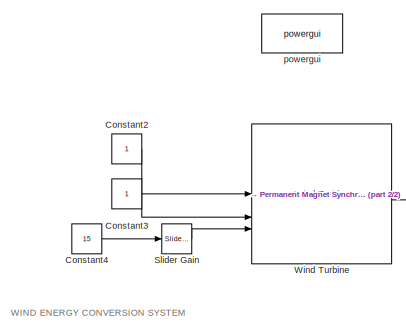
[diagram: root canvas - part 1/2, top left region]
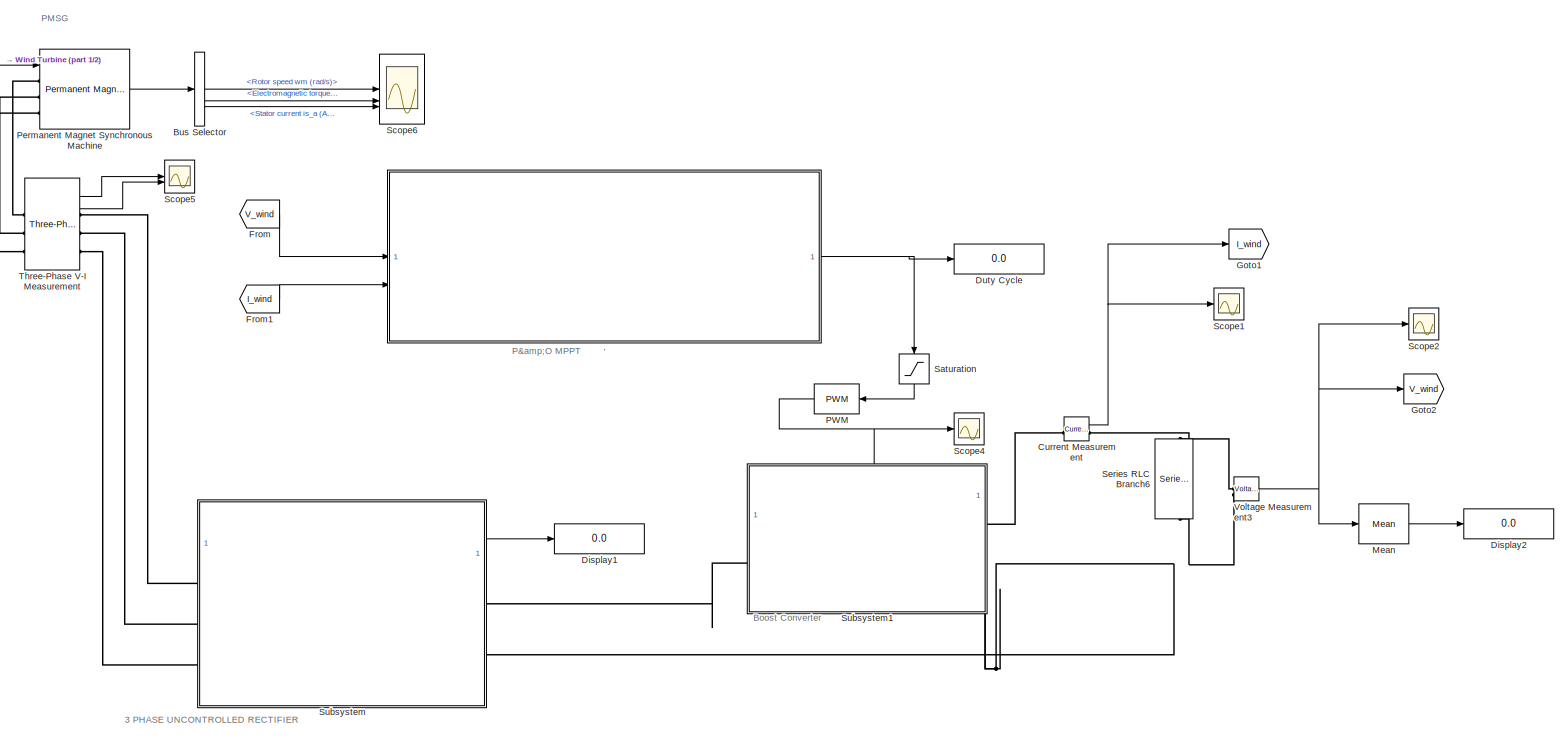
[diagram: root canvas - part 2/2, most of the canvas]
MODEL slx_5b755fa69efc
KIND model
CONFIG AbsTol = auto
CONFIG EnableMultiTasking = off
CONFIG FixedStep = auto
CONFIG MaxStep = auto
CONFIG MinStep = auto
CONFIG RelTol = 1e-3
CONFIG SampleTimeConstraint = Unconstrained
CONFIG SolverName = VariableStepAuto
CONFIG StartTime = 0.0
CONFIG StopTime = 10.0
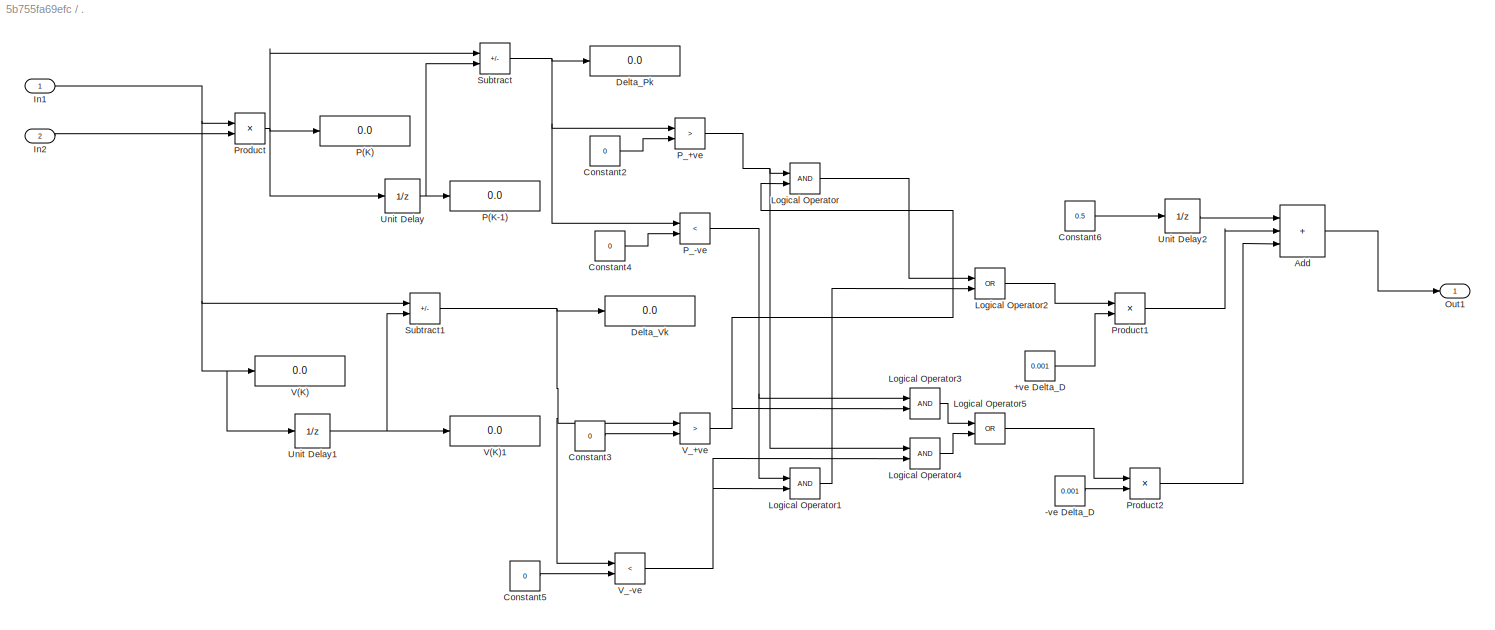
BLOCK [SubSystem] .
BLOCK [Constant] ./+ve Delta_D
  Value = 0.001
BLOCK [Constant] ./-ve Delta_D
  Value = 0.001
BLOCK [Sum] ./Add
  IconShape = rectangular
  Inputs = +++
BLOCK [Constant] ./Constant2
  Value = 0
BLOCK [Constant] ./Constant3
  Value = 0
BLOCK [Constant] ./Constant4
  Value = 0
BLOCK [Constant] ./Constant5
  Value = 0
BLOCK [Constant] ./Constant6
  Value = 0.5
BLOCK [Display] ./Delta_Pk
  Decimation = 1
BLOCK [Display] ./Delta_Vk
  Decimation = 1
BLOCK [Inport] ./In1
BLOCK [Inport] ./In2
  Port = 2
BLOCK [Logic] ./Logical Operator
  AllPortsSameDT = off
  OutDataTypeStr = boolean
BLOCK [Logic] ./Logical Operator1
  AllPortsSameDT = off
  OutDataTypeStr = boolean
BLOCK [Logic] ./Logical Operator2
  AllPortsSameDT = off
  Operator = OR
  OutDataTypeStr = boolean
BLOCK [Logic] ./Logical Operator3
  AllPortsSameDT = off
  OutDataTypeStr = boolean
BLOCK [Logic] ./Logical Operator4
  AllPortsSameDT = off
  OutDataTypeStr = boolean
BLOCK [Logic] ./Logical Operator5
  AllPortsSameDT = off
  Operator = OR
  OutDataTypeStr = boolean
BLOCK [Outport] ./Out1
BLOCK [Display] ./P(K)
  Decimation = 1
BLOCK [Display] ./P(K-1)
  Decimation = 1
BLOCK [RelationalOperator] ./P_+ve
  InputSameDT = off
  Operator = >
  OutDataTypeStr = boolean
  RndMeth = Simplest
BLOCK [RelationalOperator] ./P_-ve
  InputSameDT = off
  Operator = <
  OutDataTypeStr = boolean
  RndMeth = Simplest
BLOCK [Product] ./Product
BLOCK [Product] ./Product1
BLOCK [Product] ./Product2
BLOCK [Sum] ./Subtract
  IconShape = rectangular
  Inputs = +-
BLOCK [Sum] ./Subtract1
  IconShape = rectangular
  Inputs = +-
BLOCK [UnitDelay] ./Unit Delay
  HasFrameUpgradeWarning = on
  SampleTime = -1
BLOCK [UnitDelay] ./Unit Delay1
  HasFrameUpgradeWarning = on
  SampleTime = -1
BLOCK [UnitDelay] ./Unit Delay2
  HasFrameUpgradeWarning = on
  SampleTime = -1
BLOCK [Display] ./V(K)
  Decimation = 1
BLOCK [Display] ./V(K)1
  Decimation = 1
BLOCK [RelationalOperator] ./V_+ve
  InputSameDT = off
  Operator = >
  OutDataTypeStr = boolean
  RndMeth = Simplest
BLOCK [RelationalOperator] ./V_-ve
  InputSameDT = off
  Operator = <
  OutDataTypeStr = boolean
  RndMeth = Simplest
BLOCK [BusSelector] Bus Selector
  OutputSignals = Rotor speed wm (rad/s),Electromagnetic torque Te (N*m),Stator current is_a (A)
BLOCK [Constant] Constant2
BLOCK [Constant] Constant3
BLOCK [Constant] Constant4
  Value = 15
BLOCK [Reference] Current Measurement  REF=spsCurrentMeasurementLib/Current Measurement
  LibrarySourceBlock = sps_lib/Sensors and Measurements/Current Measurement
  SourceBlock = spsCurrentMeasurementLib/Current Measurement
  SourceType = Current Measurement
  UserDataPersistent = on
BLOCK [Display] Display1
  Decimation = 1
BLOCK [Display] Display2
  Decimation = 1
BLOCK [Display] Duty Cycle
  Decimation = 1
BLOCK [From] From
  GotoTag = V_wind
BLOCK [From] From1
  GotoTag = I_wind
BLOCK [Goto] Goto1
  GotoTag = I_wind
BLOCK [Goto] Goto2
  GotoTag = V_wind
BLOCK [Reference] Mean  REF=spsMeanLib/Mean
  LibrarySourceBlock = sps_lib/Sensors and Measurements/Mean
  SourceBlock = spsMeanLib/Mean
  SourceType = Mean
BLOCK [Reference] PWM  REF=simulink/Discontinuities/PWM
  DisableCoverage = on
  NameLocation = top
  SourceBlock = simulink/Discontinuities/PWM
  SourceType = PWM
BLOCK [Reference] Permanent Magnet Synchronous Machine  REF=spsPermanentMagnetSynchronousMachineLib/Permanent Magnet
Synchronous Machine
  LibrarySourceBlock = sps_lib/Electrical Machines/Permanent Magnet\nSynchronous Machine
  SourceBlock = spsPermanentMagnetSynchronousMachineLib/Permanent Magnet\nSynchronous Machine
  SourceType = Permanent Magnet Synchronous Machine
BLOCK [Saturate] Saturation
  LowerLimit = 0.1
  NameLocation = left
  UpperLimit = 0.9
BLOCK [Scope] Scope1
  Floating = off
  NumInputPorts = 1
  ScopeSpecificationString = Simulink.scopes.TimeScopeBlockCfg('CurrentConfiguration', extmgr.ConfigurationSet(extmgr.Configuration('Core','General UI',true,'FigureColor',[0 1 1]),extmgr.Configuration('Core','Source UI',true),extmgr.Configuration('Sources','WiredSimulink',true,'DataLoggingVariableName','ScopeData5'),extmgr.Configuration('Visuals','Time Domain',true,'SerializedDisplays',{struct('MinYLimReal','-0.05365','MaxYLi...<+1729ch>
BLOCK [Scope] Scope2
  Floating = off
  NumInputPorts = 1
  ScopeSpecificationString = Simulink.scopes.TimeScopeBlockCfg('CurrentConfiguration', extmgr.ConfigurationSet(extmgr.Configuration('Core','General UI',true,'FigureColor',[0 1 1]),extmgr.Configuration('Core','Source UI',true),extmgr.Configuration('Sources','WiredSimulink',true,'DataLoggingVariableName','ScopeData6'),extmgr.Configuration('Visuals','Time Domain',true,'SerializedDisplays',{struct('MinYLimReal','-0.53647','MaxYLi...<+1730ch>
BLOCK [Scope] Scope4
  Floating = off
  NumInputPorts = 1
  ScopeSpecificationString = Simulink.scopes.TimeScopeBlockCfg('CurrentConfiguration', extmgr.ConfigurationSet(extmgr.Configuration('Core','General UI',true),extmgr.Configuration('Core','Source UI',true),extmgr.Configuration('Sources','WiredSimulink',true,'DataLoggingVariableName','ScopeData1'),extmgr.Configuration('Visuals','Time Domain',true,'SerializedDisplays',{struct('MinYLimReal','-0.125','MaxYLimReal','1.125','YLabelRe...<+1562ch>
BLOCK [Scope] Scope5
  Floating = off
  NumInputPorts = 2
  ScopeSpecificationString = Simulink.scopes.TimeScopeBlockCfg('CurrentConfiguration', extmgr.ConfigurationSet(extmgr.Configuration('Core','General UI',true,'FigureColor',[0 1 1]),extmgr.Configuration('Core','Source UI',true),extmgr.Configuration('Sources','WiredSimulink',true,'DataLoggingVariableName','ScopeData2'),extmgr.Configuration('Visuals','Time Domain',true,'SerializedDisplays',{struct('MinYLimReal','-7.85642','MaxYLi...<+2329ch>
BLOCK [Scope] Scope6
  Floating = off
  NumInputPorts = 3
  ScopeSpecificationString = Simulink.scopes.TimeScopeBlockCfg('CurrentConfiguration', extmgr.ConfigurationSet(extmgr.Configuration('Core','General UI',true,'FigureColor',[0 1 1]),extmgr.Configuration('Core','Source UI',true),extmgr.Configuration('Sources','WiredSimulink',true,'DataLoggingVariableName','ScopeData3'),extmgr.Configuration('Visuals','Time Domain',true,'SerializedDisplays',{struct('MinYLimReal','-0.74839','MaxYLi...<+3176ch>
BLOCK [Reference] Series RLC Branch6  REF=spsSeriesRLCBranchLib/Series RLC Branch
  LibrarySourceBlock = sps_lib/Passives/Series RLC Branch
  NameLocation = left
  SourceBlock = spsSeriesRLCBranchLib/Series RLC Branch
  SourceType = Series RLC Branch
BLOCK [Reference] Slider Gain  REF=simulink/Math
Operations/Slider
Gain
  SourceBlock = simulink/Math\nOperations/Slider\nGain
  SourceType = Slider Gain
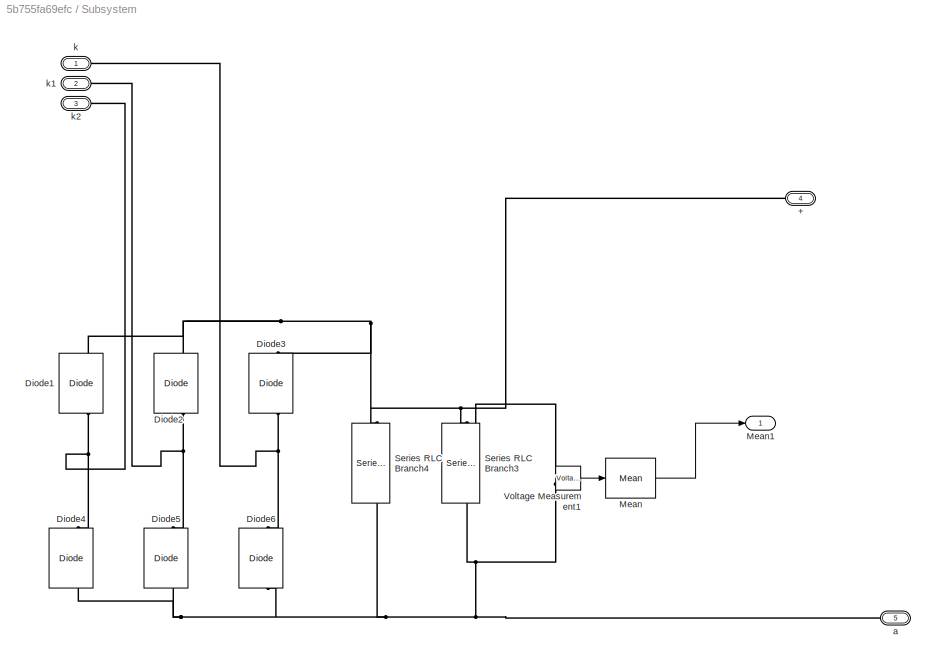
BLOCK [SubSystem] Subsystem
BLOCK [PMIOPort] Subsystem/+
  Port = 4
  Side = Right
BLOCK [Reference] Subsystem/Diode1  REF=spsDiodeLib/Diode
  LibrarySourceBlock = sps_lib/Power Electronics/Diode
  NameLocation = right
  SourceBlock = spsDiodeLib/Diode
  SourceType = Diode
BLOCK [Reference] Subsystem/Diode2  REF=spsDiodeLib/Diode
  LibrarySourceBlock = sps_lib/Power Electronics/Diode
  NameLocation = right
  SourceBlock = spsDiodeLib/Diode
  SourceType = Diode
BLOCK [Reference] Subsystem/Diode3  REF=spsDiodeLib/Diode
  LibrarySourceBlock = sps_lib/Power Electronics/Diode
  NameLocation = right
  SourceBlock = spsDiodeLib/Diode
  SourceType = Diode
BLOCK [Reference] Subsystem/Diode4  REF=spsDiodeLib/Diode
  LibrarySourceBlock = sps_lib/Power Electronics/Diode
  NameLocation = right
  SourceBlock = spsDiodeLib/Diode
  SourceType = Diode
BLOCK [Reference] Subsystem/Diode5  REF=spsDiodeLib/Diode
  LibrarySourceBlock = sps_lib/Power Electronics/Diode
  NameLocation = right
  SourceBlock = spsDiodeLib/Diode
  SourceType = Diode
BLOCK [Reference] Subsystem/Diode6  REF=spsDiodeLib/Diode
  LibrarySourceBlock = sps_lib/Power Electronics/Diode
  NameLocation = right
  SourceBlock = spsDiodeLib/Diode
  SourceType = Diode
BLOCK [Reference] Subsystem/Mean  REF=spsMeanLib/Mean
  LibrarySourceBlock = sps_lib/Sensors and Measurements/Mean
  SourceBlock = spsMeanLib/Mean
  SourceType = Mean
BLOCK [Outport] Subsystem/Mean1
BLOCK [Reference] Subsystem/Series RLC Branch3  REF=spsSeriesRLCBranchLib/Series RLC Branch
  LibrarySourceBlock = sps_lib/Passives/Series RLC Branch
  NameLocation = left
  SourceBlock = spsSeriesRLCBranchLib/Series RLC Branch
  SourceType = Series RLC Branch
BLOCK [Reference] Subsystem/Series RLC Branch4  REF=spsSeriesRLCBranchLib/Series RLC Branch
  LibrarySourceBlock = sps_lib/Passives/Series RLC Branch
  NameLocation = left
  SourceBlock = spsSeriesRLCBranchLib/Series RLC Branch
  SourceType = Series RLC Branch
BLOCK [Reference] Subsystem/Voltage Measurement1  REF=spsVoltageMeasurementLib/Voltage Measurement
  LibrarySourceBlock = sps_lib/Sensors and Measurements/Voltage Measurement
  SourceBlock = spsVoltageMeasurementLib/Voltage Measurement
  SourceType = Voltage Measurement
  UserDataPersistent = on
BLOCK [PMIOPort] Subsystem/a
  Port = 5
  Side = Right
BLOCK [PMIOPort] Subsystem/k
  Side = Left
BLOCK [PMIOPort] Subsystem/k1
  Port = 2
  Side = Left
BLOCK [PMIOPort] Subsystem/k2
  Port = 3
  Side = Left
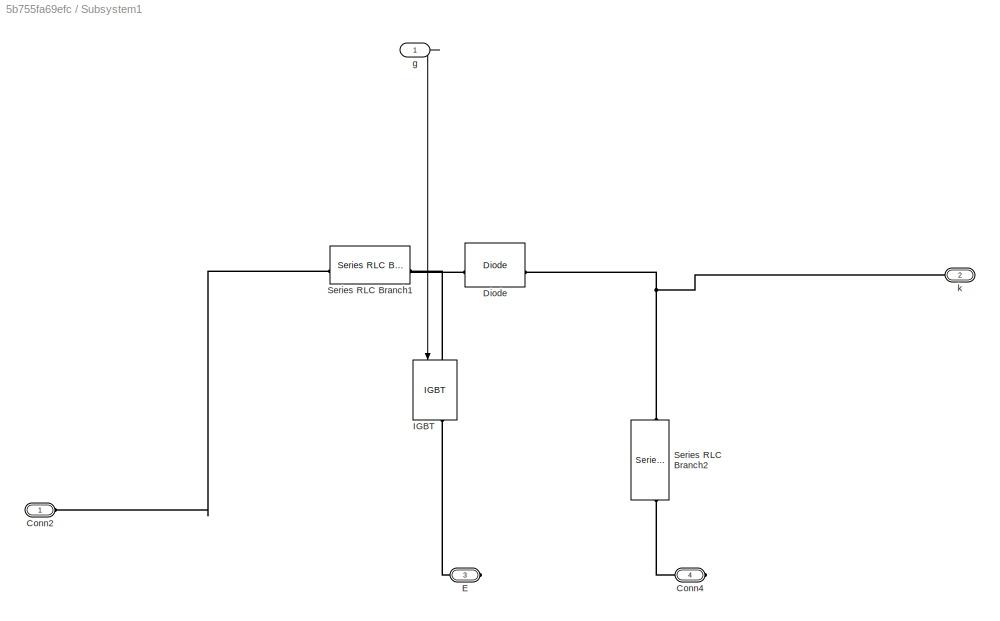
BLOCK [SubSystem] Subsystem1
  PortSchema = {"entries":[{"content":{"sides":[{"content":{"connectorIds":["LConn1"]},"type":"ConnectorPlacement.EquallySpacedRectSide","uuid":"8b4d80fa-a07e-4510-b850-5263d03b0dea"},{"content":{"connectorIds":["RConn1","RConn2","RConn3"],"side":"RIGHT"},"type":"ConnectorPlacement.EquallySpacedRectSide","uuid":"d82ac879-8952-405d-86fe-c8d3c437f8a4"},{"content":{"connectorIds":["In1"],"side":"TOP"},"type":"Conne...<+268ch>
BLOCK [PMIOPort] Subsystem1/Conn2
  Side = Left
BLOCK [PMIOPort] Subsystem1/Conn4
  Port = 4
  Side = Right
BLOCK [Reference] Subsystem1/Diode  REF=spsDiodeLib/Diode
  LibrarySourceBlock = sps_lib/Power Electronics/Diode
  SourceBlock = spsDiodeLib/Diode
  SourceType = Diode
BLOCK [PMIOPort] Subsystem1/E
  Port = 3
  Side = Right
BLOCK [Reference] Subsystem1/IGBT  REF=spsIGBTLib/IGBT
  LibrarySourceBlock = sps_lib/Power Electronics/IGBT
  NameLocation = left
  SourceBlock = spsIGBTLib/IGBT
  SourceType = IGBT
BLOCK [Reference] Subsystem1/Series RLC Branch1  REF=spsSeriesRLCBranchLib/Series RLC Branch
  LibrarySourceBlock = sps_lib/Passives/Series RLC Branch
  SourceBlock = spsSeriesRLCBranchLib/Series RLC Branch
  SourceType = Series RLC Branch
BLOCK [Reference] Subsystem1/Series RLC Branch2  REF=spsSeriesRLCBranchLib/Series RLC Branch
  LibrarySourceBlock = sps_lib/Passives/Series RLC Branch
  NameLocation = left
  SourceBlock = spsSeriesRLCBranchLib/Series RLC Branch
  SourceType = Series RLC Branch
BLOCK [Inport] Subsystem1/g
BLOCK [PMIOPort] Subsystem1/k
  Port = 2
  Side = Right
BLOCK [Reference] Three-Phase V-I Measurement  REF=spsThreePhaseVIMeasurementLib/Three-Phase
V-I Measurement
  LibrarySourceBlock = sps_lib/Sensors and Measurements/Three-Phase\nV-I Measurement
  SourceBlock = spsThreePhaseVIMeasurementLib/Three-Phase\nV-I Measurement
  SourceType = Three-Phase VI Measurement
BLOCK [Reference] Voltage Measurement3  REF=spsVoltageMeasurementLib/Voltage Measurement
  LibrarySourceBlock = sps_lib/Sensors and Measurements/Voltage Measurement
  SourceBlock = spsVoltageMeasurementLib/Voltage Measurement
  SourceType = Voltage Measurement
  UserDataPersistent = on
BLOCK [Reference] Wind Turbine  REF=spsWindTurbineLib/Wind Turbine
  LibrarySourceBlock = sps_lib/Electrical Machines/Wind Turbine
  SourceBlock = spsWindTurbineLib/Wind Turbine
  SourceType = Wind Turbine
BLOCK [Reference] powergui  REF=sps_lib/powergui
  LibrarySourceBlock = sps_lib/powergui
  Priority = 1
  SourceBlock = sps_lib/powergui
  SourceType = PSB option menu block
ANNOTATION (root): 3 PHASE UNCONTROLLED RECTIFIER
ANNOTATION (root): WIND ENERGY CONVERSION SYSTEM
ANNOTATION (root): Boost Converter
ANNOTATION (root): PMSG
ANNOTATION (root): P&O MPPT
LINE ./+ve Delta_D:1 -> ./Product1:2
LINE ./-ve Delta_D:1 -> ./Product2:2
LINE ./Add:1 -> ./Out1:1
LINE ./Constant2:1 -> ./P_+ve:2
LINE ./Constant3:1 -> ./V_+ve:2
LINE ./Constant4:1 -> ./P_-ve:2
LINE ./Constant5:1 -> ./V_-ve:2
LINE ./Constant6:1 -> ./Unit Delay2:1
NET ./In1:1 -> ./Product:1, ./Subtract1:1, ./Unit Delay1:1, ./V(K):1
LINE ./In2:1 -> ./Product:2
LINE ./Logical Operator1:1 -> ./Logical Operator2:2
LINE ./Logical Operator2:1 -> ./Product1:1
LINE ./Logical Operator3:1 -> ./Logical Operator5:1
LINE ./Logical Operator4:1 -> ./Logical Operator5:2
LINE ./Logical Operator5:1 -> ./Product2:1
LINE ./Logical Operator:1 -> ./Logical Operator2:1
NET ./P_+ve:1 -> ./Logical Operator4:1, ./Logical Operator:1
NET ./P_-ve:1 -> ./Logical Operator1:1, ./Logical Operator3:1
LINE ./Product1:1 -> ./Add:2
LINE ./Product2:1 -> ./Add:3
NET ./Product:1 -> ./P(K):1, ./Subtract:1, ./Unit Delay:1
NET ./Subtract1:1 -> ./Delta_Vk:1, ./V_+ve:1, ./V_-ve:1
NET ./Subtract:1 -> ./Delta_Pk:1, ./P_+ve:1, ./P_-ve:1
NET ./Unit Delay1:1 -> ./Subtract1:2, ./V(K)1:1
LINE ./Unit Delay2:1 -> ./Add:1
NET ./Unit Delay:1 -> ./P(K-1):1, ./Subtract:2
NET ./V_+ve:1 -> ./Logical Operator3:2, ./Logical Operator:2
NET ./V_-ve:1 -> ./Logical Operator1:2, ./Logical Operator4:2
NET .:1 -> Duty Cycle:1, Saturation:1
LINE Bus Selector:1 -> Scope6:1
LINE Bus Selector:2 -> Scope6:2
LINE Bus Selector:3 -> Scope6:3
LINE Constant2:1 -> Wind Turbine:1
LINE Constant3:1 -> Wind Turbine:2
LINE Constant4:1 -> Slider Gain:1
NET Current Measurement:1 -> Goto1:1, Scope1:1
LINE From1:1 -> .:2
LINE From:1 -> .:1
LINE Mean:1 -> Display2:1
NET PWM:1 -> Scope4:1, Subsystem1:1
LINE Permanent Magnet Synchronous Machine:1 -> Bus Selector:1
LINE Saturation:1 -> PWM:1
LINE Slider Gain:1 -> Wind Turbine:3
LINE Subsystem/Mean:1 -> Subsystem/Mean1:1
LINE Subsystem/Voltage Measurement1:1 -> Subsystem/Mean:1
LINE Subsystem1/g:1 -> Subsystem1/IGBT:1
LINE Subsystem:1 -> Display1:1
LINE Three-Phase V-I Measurement:1 -> Scope5:1
LINE Three-Phase V-I Measurement:2 -> Scope5:2
NET Voltage Measurement3:1 -> Goto2:1, Mean:1, Scope2:1
LINE Wind Turbine:1 -> Permanent Magnet Synchronous Machine:1
PLINE Current Measurement:LConn1 -- Subsystem1:RConn1
PNET net1: Current Measurement:RConn1 -- Series RLC Branch6:LConn1 -- Voltage Measurement3:LConn1
PLINE Permanent Magnet Synchronous Machine:LConn1 -- Three-Phase V-I Measurement:LConn1
PLINE Permanent Magnet Synchronous Machine:LConn2 -- Three-Phase V-I Measurement:LConn2
PLINE Permanent Magnet Synchronous Machine:LConn3 -- Three-Phase V-I Measurement:LConn3
PNET net2: Series RLC Branch6:RConn1 -- Subsystem1:RConn2 -- Subsystem1:RConn3 -- Subsystem:RConn2 -- Voltage Measurement3:LConn2
PNET net3: Subsystem/+:RConn1 -- Subsystem/Diode1:RConn1 -- Subsystem/Diode2:RConn1 -- Subsystem/Diode3:RConn1 -- Subsystem/Series RLC Branch3:LConn1 -- Subsystem/Series RLC Branch4:LConn1 -- Subsystem/Voltage Measurement1:LConn1
PNET net4: Subsystem/Diode1:LConn1 -- Subsystem/Diode4:RConn1 -- Subsystem/k2:RConn1
PNET net5: Subsystem/Diode2:LConn1 -- Subsystem/Diode5:RConn1 -- Subsystem/k1:RConn1
PNET net6: Subsystem/Diode3:LConn1 -- Subsystem/Diode6:RConn1 -- Subsystem/k:RConn1
PNET net7: Subsystem/Diode4:LConn1 -- Subsystem/Diode5:LConn1 -- Subsystem/Diode6:LConn1 -- Subsystem/Series RLC Branch3:RConn1 -- Subsystem/Series RLC Branch4:RConn1 -- Subsystem/Voltage Measurement1:LConn2 -- Subsystem/a:RConn1
PLINE Subsystem1/Conn2:RConn1 -- Subsystem1/Series RLC Branch1:LConn1
PLINE Subsystem1/Conn4:RConn1 -- Subsystem1/Series RLC Branch2:RConn1
PNET net8: Subsystem1/Diode:LConn1 -- Subsystem1/IGBT:LConn1 -- Subsystem1/Series RLC Branch1:RConn1
PNET net9: Subsystem1/Diode:RConn1 -- Subsystem1/Series RLC Branch2:LConn1 -- Subsystem1/k:RConn1
PLINE Subsystem1/E:RConn1 -- Subsystem1/IGBT:RConn1
PLINE Subsystem1:LConn1 -- Subsystem:RConn1
PLINE Subsystem:LConn1 -- Three-Phase V-I Measurement:RConn1
PLINE Subsystem:LConn2 -- Three-Phase V-I Measurement:RConn2
PLINE Subsystem:LConn3 -- Three-Phase V-I Measurement:RConn3
note: NET lines group one-source signal fan-out (src -> all destinations, sorted); 1:1 wires keep LINE; PNET lines group multi-terminal physical nets as a canonical sorted terminal list (undirected conserving connections); 2-terminal nets keep the pairwise PLINE form
